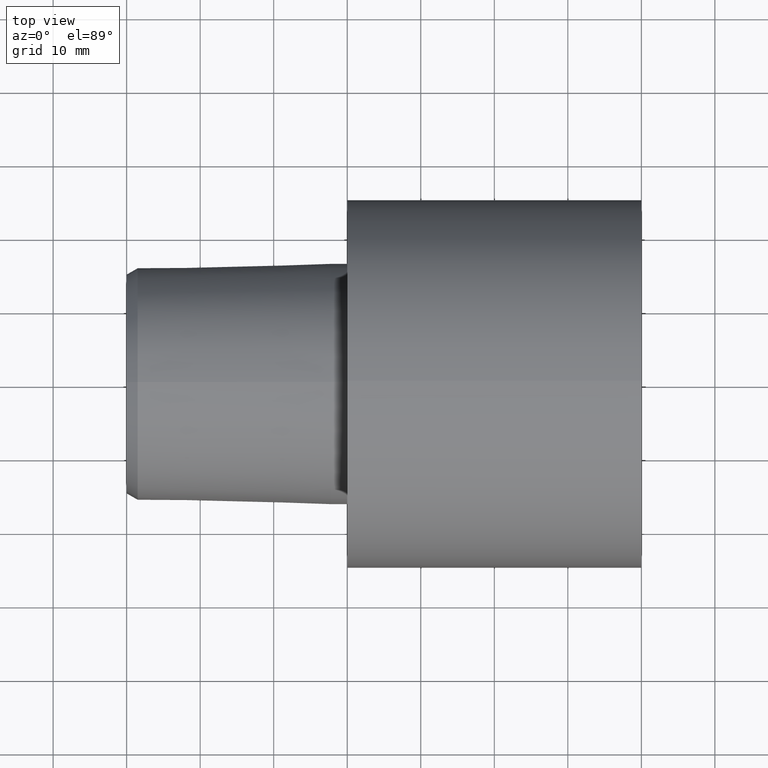
[diagram: clean part render]
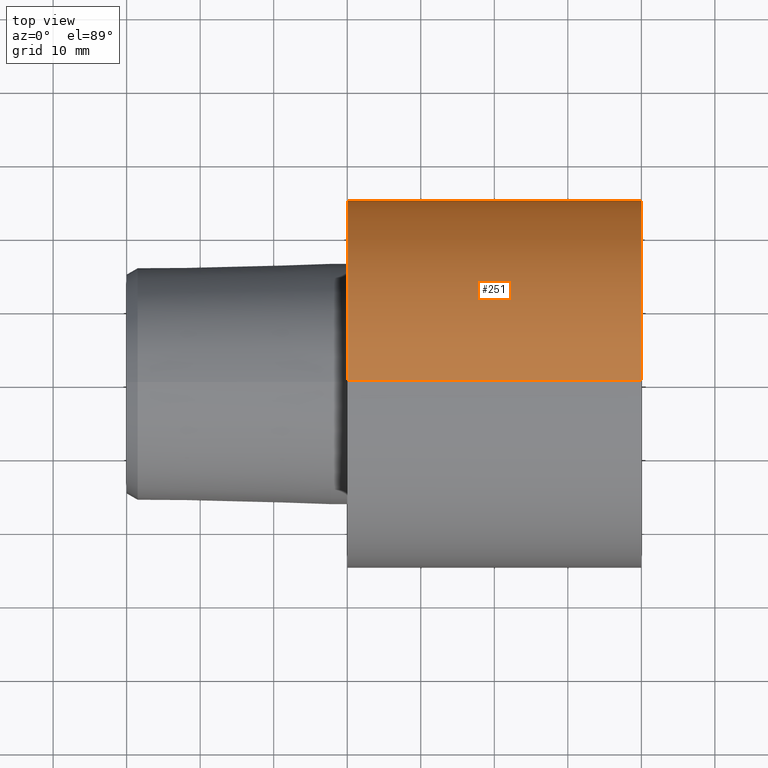
[diagram: same view with one face highlighted and labeled with its STEP entity id]
A machine part, top view. The second image highlights one B-rep face of the part: STEP entity #251.
In plain terms, the highlighted cylindrical surface (partial cylindrical patch) has radius 24.99 mm, axis along (-1, 0, 0).
Its self-contained STEP definition (entity closure, byte-faithful):
#2 = EDGE_CURVE ( 'NONE', #222, #269, #85, .T. ) ;
#3 = VERTEX_POINT ( 'NONE', #274 ) ;
#11 = DIRECTION ( 'NONE',  ( 0.000000000000000000, 0.000000000000000000, 1.000000000000000000 ) ) ;
#29 = ORIENTED_EDGE ( 'NONE', *, *, #227, .F. ) ;
#35 = DIRECTION ( 'NONE',  ( -1.000000000000000000, 0.000000000000000000, 0.000000000000000000 ) ) ;
#38 = AXIS2_PLACEMENT_3D ( 'NONE', #335, #164, #331 ) ;
#42 = ORIENTED_EDGE ( 'NONE', *, *, #2, .F. ) ;
#50 = EDGE_LOOP ( 'NONE', ( #160, #188, #42, #29 ) ) ;
#85 = CIRCLE ( 'NONE', #38, 24.98999997451020150 ) ;
#93 = CARTESIAN_POINT ( 'NONE',  ( -29.99999996776130118, 0.000000000000000000, 0.000000000000000000 ) ) ;
#97 = DIRECTION ( 'NONE',  ( 0.000000000000000000, 0.000000000000000000, 1.000000000000000000 ) ) ;
#109 = AXIS2_PLACEMENT_3D ( 'NONE', #93, #205, #97 ) ;
#119 = CARTESIAN_POINT ( 'NONE',  ( 0.000000000000000000, 0.000000000000000000, 24.98999997451020150 ) ) ;
#123 = VERTEX_POINT ( 'NONE', #125 ) ;
#125 = CARTESIAN_POINT ( 'NONE',  ( 39.99999995919999662, 3.060392347947635560E-15, -24.98999997451020150 ) ) ;
#144 = CIRCLE ( 'NONE', #349, 24.98999997451020150 ) ;
#160 = ORIENTED_EDGE ( 'NONE', *, *, #240, .T. ) ;
#164 = DIRECTION ( 'NONE',  ( -1.000000000000000000, 0.000000000000000000, 0.000000000000000000 ) ) ;
#176 = LINE ( 'NONE', #285, #307 ) ;
#181 = LINE ( 'NONE', #291, #336 ) ;
#188 = ORIENTED_EDGE ( 'NONE', *, *, #257, .T. ) ;
#205 = DIRECTION ( 'NONE',  ( -1.000000000000000000, 0.000000000000000000, 0.000000000000000000 ) ) ;
#222 = VERTEX_POINT ( 'NONE', #119 ) ;
#227 = EDGE_CURVE ( 'NONE', #3, #222, #176, .T. ) ;
#231 = DIRECTION ( 'NONE',  ( -1.000000000000000000, 0.000000000000000000, 0.000000000000000000 ) ) ;
#240 = EDGE_CURVE ( 'NONE', #3, #123, #144, .T. ) ;
#243 = CARTESIAN_POINT ( 'NONE',  ( 0.000000000000000000, 3.060392347947635560E-15, -24.98999997451020150 ) ) ;
#246 = DIRECTION ( 'NONE',  ( -1.000000000000000000, 0.000000000000000000, 0.000000000000000000 ) ) ;
#251 = ADVANCED_FACE ( 'NONE', ( #293 ), #346, .T. ) ;
#257 = EDGE_CURVE ( 'NONE', #123, #269, #181, .T. ) ;
#259 = CARTESIAN_POINT ( 'NONE',  ( 39.99999995919999662, 0.000000000000000000, 0.000000000000000000 ) ) ;
#269 = VERTEX_POINT ( 'NONE', #243 ) ;
#274 = CARTESIAN_POINT ( 'NONE',  ( 39.99999995919999662, 0.000000000000000000, 24.98999997451020150 ) ) ;
#285 = CARTESIAN_POINT ( 'NONE',  ( -29.99999996776130118, 0.000000000000000000, 24.98999997451020150 ) ) ;
#291 = CARTESIAN_POINT ( 'NONE',  ( -29.99999996776130118, 3.060392347947635560E-15, -24.98999997451020150 ) ) ;
#293 = FACE_OUTER_BOUND ( 'NONE', #50, .T. ) ;
#307 = VECTOR ( 'NONE', #35, 1000.000000000000000 ) ;
#331 = DIRECTION ( 'NONE',  ( 0.000000000000000000, 0.000000000000000000, 1.000000000000000000 ) ) ;
#335 = CARTESIAN_POINT ( 'NONE',  ( 0.000000000000000000, 0.000000000000000000, 0.000000000000000000 ) ) ;
#336 = VECTOR ( 'NONE', #246, 1000.000000000000000 ) ;
#346 = CYLINDRICAL_SURFACE ( 'NONE', #109, 24.98999997451020150 ) ;
#349 = AXIS2_PLACEMENT_3D ( 'NONE', #259, #231, #11 ) ;